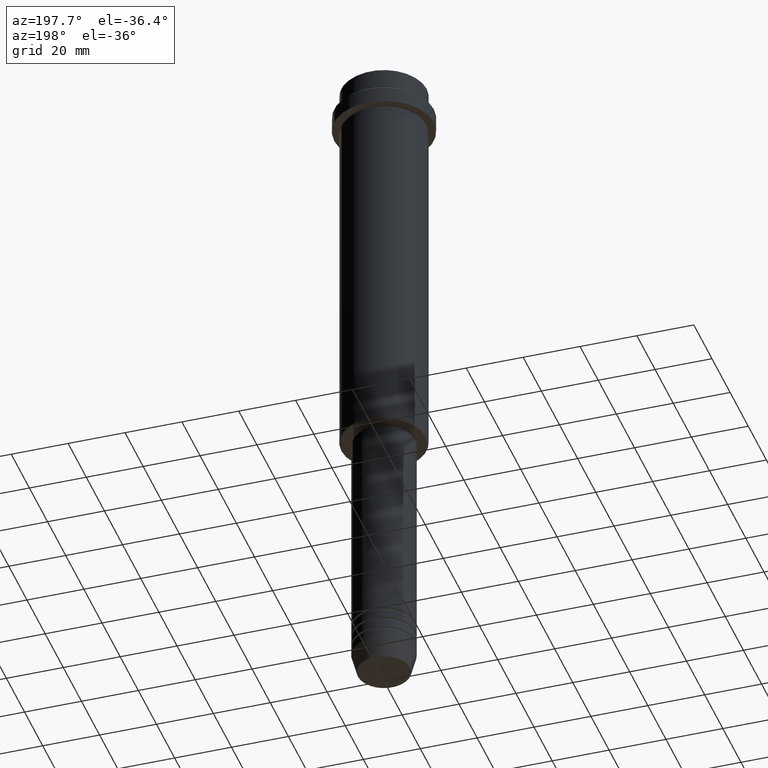
[diagram: clean part render]
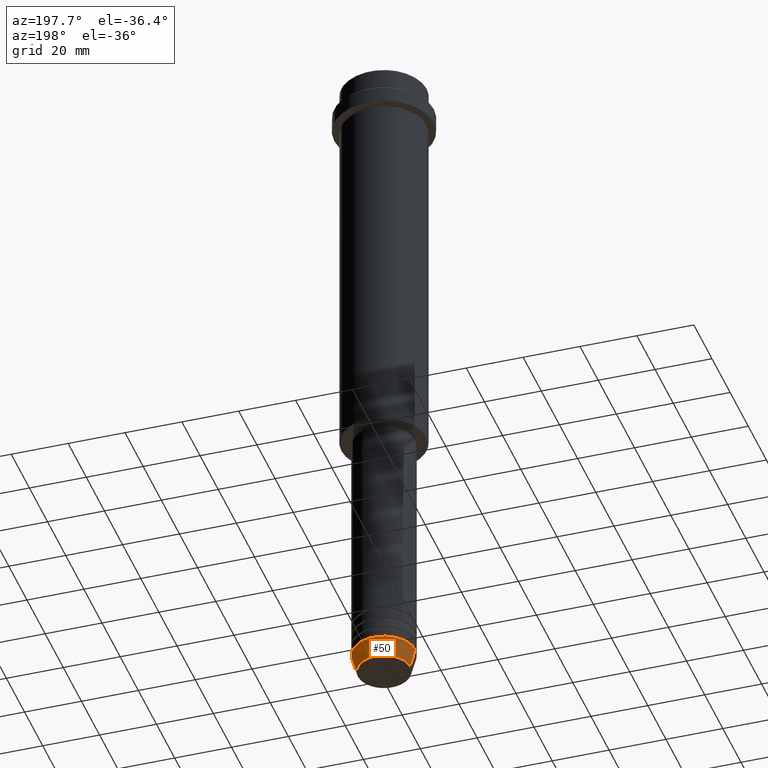
[diagram: same view with one face highlighted and labeled with its STEP entity id]
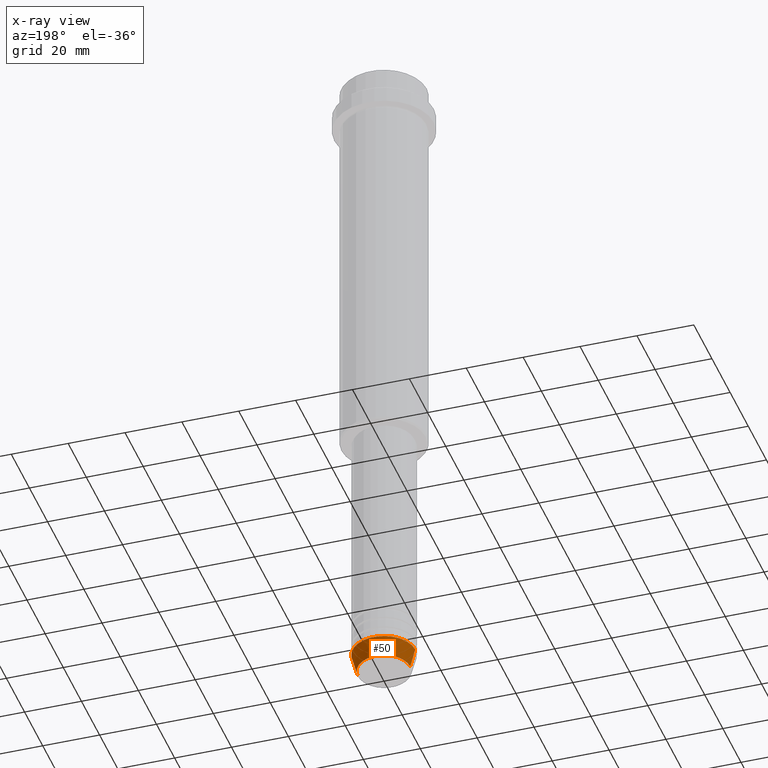
[diagram: x-ray of the same camera — body ghosted, the highlighted face saturated]
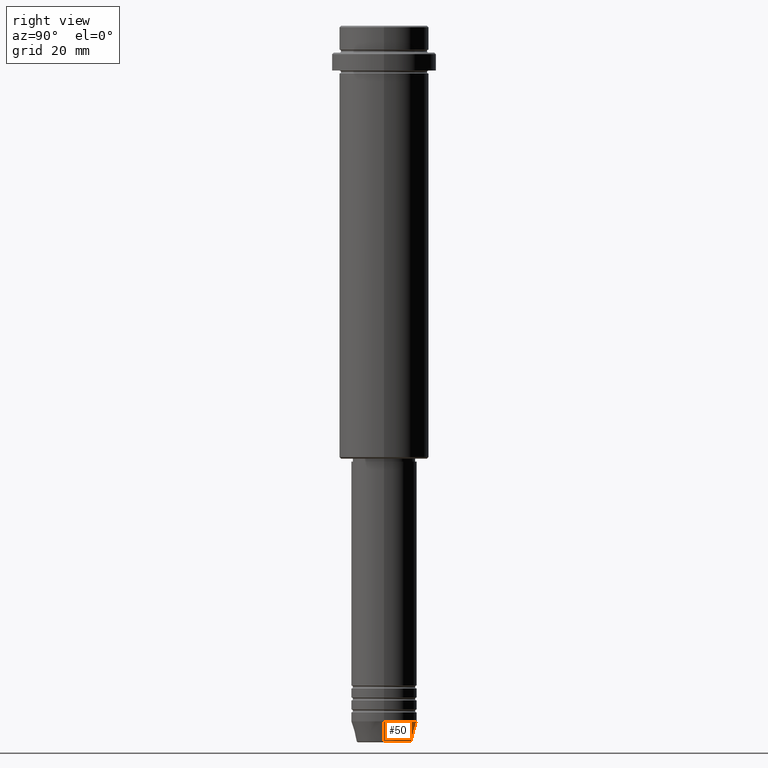
[diagram: same view with one face highlighted and labeled with its STEP entity id]
A machine part, auxiliary view. The second image highlights one B-rep face of the part: STEP entity #50.
The next image is the same camera in x-ray: the body ghosted, the highlighted face saturated — about 0% of this face is hidden behind the body in this view.
A second angle (right view) of the same face is appended — the face is thin or edge-on in the first view.
In plain terms, the highlighted conical surface has half-angle 15 deg.
Its self-contained STEP definition (entity closure, byte-faithful):
#21 = LINE ( 'NONE', #1110, #601 ) ;
#30 = DIRECTION ( 'NONE',  ( -0.2588190451025213501, 3.169619151431772337E-17, 0.9659258262890680902 ) ) ;
#41 = VERTEX_POINT ( 'NONE', #429 ) ;
#50 = ADVANCED_FACE ( 'NONE', ( #462 ), #555, .T. ) ;
#111 = EDGE_CURVE ( 'NONE', #41, #993, #1081, .T. ) ;
#135 = AXIS2_PLACEMENT_3D ( 'NONE', #307, #1291, #1077 ) ;
#166 = LINE ( 'NONE', #623, #179 ) ;
#179 = VECTOR ( 'NONE', #924, 1000.000000000000000 ) ;
#242 = AXIS2_PLACEMENT_3D ( 'NONE', #793, #926, #552 ) ;
#307 = CARTESIAN_POINT ( 'NONE',  ( 0.000000000000000000, 0.000000000000000000, -239.6294095225512422 ) ) ;
#409 = CIRCLE ( 'NONE', #135, 9.223655072137189492 ) ;
#429 = CARTESIAN_POINT ( 'NONE',  ( 11.00000000000000000, 0.000000000000000000, -232.9999999999999716 ) ) ;
#462 = FACE_OUTER_BOUND ( 'NONE', #728, .T. ) ;
#481 = CARTESIAN_POINT ( 'NONE',  ( -11.00000000000000000, 1.347111479062088405E-15, -232.9999999999999716 ) ) ;
#552 = DIRECTION ( 'NONE',  ( 1.000000000000000000, 0.000000000000000000, 0.000000000000000000 ) ) ;
#555 = CONICAL_SURFACE ( 'NONE', #242, 11.00000000000000000, 0.2617993877991500740 ) ;
#570 = VERTEX_POINT ( 'NONE', #648 ) ;
#601 = VECTOR ( 'NONE', #30, 1000.000000000000000 ) ;
#618 = DIRECTION ( 'NONE',  ( -0.000000000000000000, -0.000000000000000000, 1.000000000000000000 ) ) ;
#623 = CARTESIAN_POINT ( 'NONE',  ( 11.00000000000000000, 0.000000000000000000, -232.9999999999999716 ) ) ;
#648 = CARTESIAN_POINT ( 'NONE',  ( 9.223655072137189492, 0.000000000000000000, -239.6294095225512422 ) ) ;
#672 = AXIS2_PLACEMENT_3D ( 'NONE', #1380, #618, #1046 ) ;
#689 = EDGE_CURVE ( 'NONE', #894, #993, #21, .T. ) ;
#728 = EDGE_LOOP ( 'NONE', ( #988, #1304, #1311, #821 ) ) ;
#793 = CARTESIAN_POINT ( 'NONE',  ( 0.000000000000000000, 0.000000000000000000, -232.9999999999999716 ) ) ;
#821 = ORIENTED_EDGE ( 'NONE', *, *, #874, .F. ) ;
#874 = EDGE_CURVE ( 'NONE', #570, #41, #166, .T. ) ;
#894 = VERTEX_POINT ( 'NONE', #1133 ) ;
#924 = DIRECTION ( 'NONE',  ( 0.2588190451025213501, 0.000000000000000000, 0.9659258262890680902 ) ) ;
#926 = DIRECTION ( 'NONE',  ( -0.000000000000000000, -0.000000000000000000, 1.000000000000000000 ) ) ;
#988 = ORIENTED_EDGE ( 'NONE', *, *, #1118, .T. ) ;
#993 = VERTEX_POINT ( 'NONE', #481 ) ;
#1046 = DIRECTION ( 'NONE',  ( 1.000000000000000000, 0.000000000000000000, 0.000000000000000000 ) ) ;
#1077 = DIRECTION ( 'NONE',  ( 1.000000000000000000, 0.000000000000000000, 0.000000000000000000 ) ) ;
#1081 = CIRCLE ( 'NONE', #672, 11.00000000000000000 ) ;
#1110 = CARTESIAN_POINT ( 'NONE',  ( -11.00000000000000000, 1.347111479062088405E-15, -232.9999999999999716 ) ) ;
#1118 = EDGE_CURVE ( 'NONE', #570, #894, #409, .T. ) ;
#1133 = CARTESIAN_POINT ( 'NONE',  ( -9.223655072137189492, 1.238341722557647202E-15, -239.6294095225512422 ) ) ;
#1291 = DIRECTION ( 'NONE',  ( -0.000000000000000000, -0.000000000000000000, 1.000000000000000000 ) ) ;
#1304 = ORIENTED_EDGE ( 'NONE', *, *, #689, .T. ) ;
#1311 = ORIENTED_EDGE ( 'NONE', *, *, #111, .F. ) ;
#1380 = CARTESIAN_POINT ( 'NONE',  ( 0.000000000000000000, 0.000000000000000000, -232.9999999999999716 ) ) ;